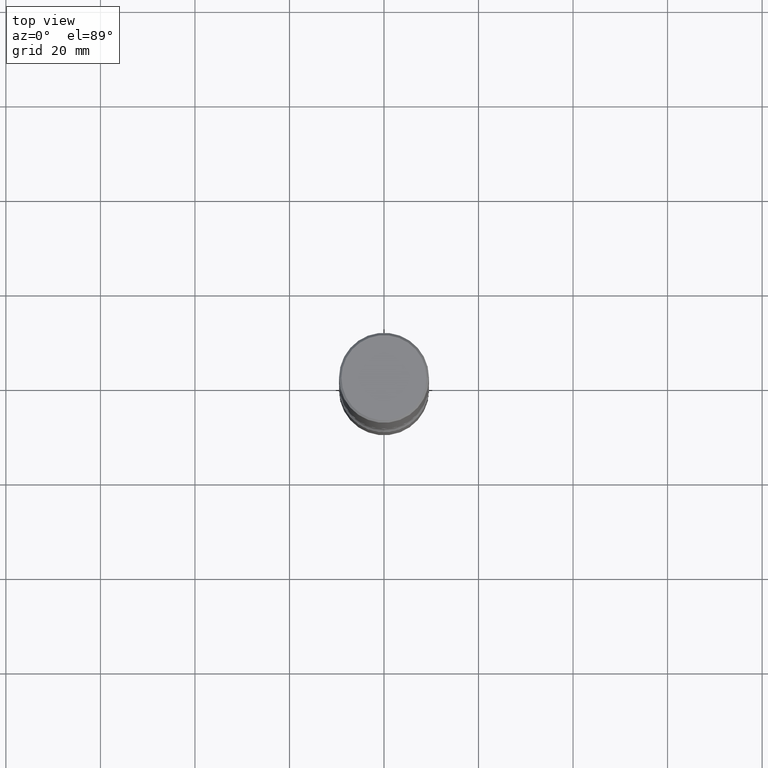
[diagram: clean part render]
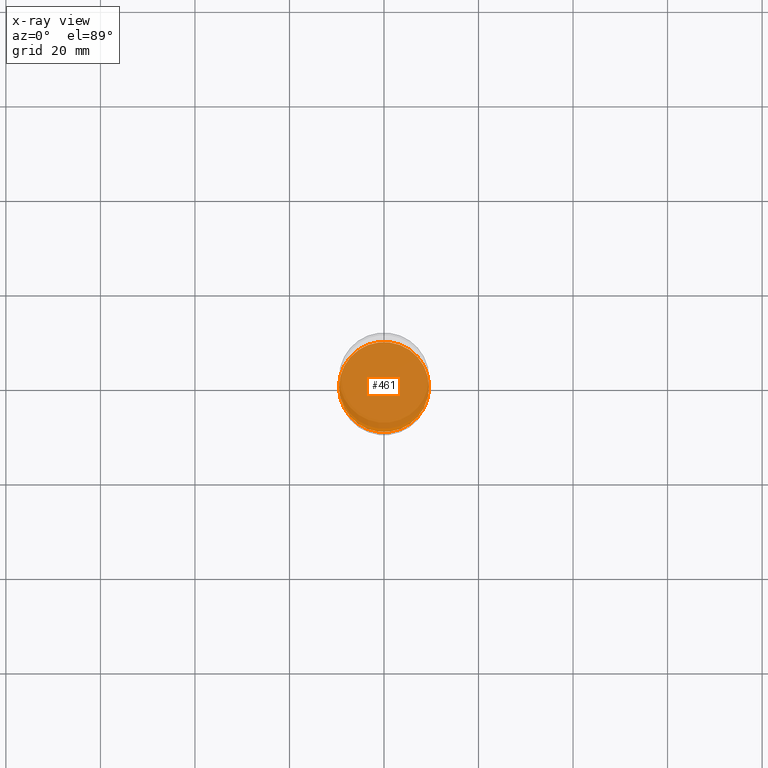
[diagram: x-ray — body ghosted, one internal face saturated and labeled with its STEP entity id]
A machine part, top view, then the same camera in x-ray: the body is ghosted and one INTERNAL B-rep face — a face not visible from any outside direction — is saturated and labeled: STEP entity #461.
In plain terms, the highlighted planar face has unit normal (0, -0, -1).
Its self-contained STEP definition (entity closure, byte-faithful):
#19 = VERTEX_POINT ( 'NONE', #275 ) ;
#21 = CARTESIAN_POINT ( 'NONE',  ( -0.3750000000000003886, -1.564828436313191776E-14, -4.499999999999999112 ) ) ;
#54 = CIRCLE ( 'NONE', #479, 0.3750000000000003886 ) ;
#59 = DIRECTION ( 'NONE',  ( -2.445468806185136597E-29, 3.491481338843145583E-15, 1.000000000000000000 ) ) ;
#139 = CARTESIAN_POINT ( 'NONE',  ( 1.100460962783311244E-28, -1.571166602479415374E-14, -4.499999999999999112 ) ) ;
#140 = DIRECTION ( 'NONE',  ( -1.000000000000000000, 6.982962677686265922E-15, -4.876176775795935793E-29 ) ) ;
#144 = CIRCLE ( 'NONE', #342, 0.3750000000000003886 ) ;
#163 = DIRECTION ( 'NONE',  ( 1.000000000000000000, -6.982962677686265922E-15, 0.000000000000000000 ) ) ;
#224 = EDGE_CURVE ( 'NONE', #310, #19, #144, .T. ) ;
#240 = ORIENTED_EDGE ( 'NONE', *, *, #441, .T. ) ;
#267 = DIRECTION ( 'NONE',  ( 1.000000000000000000, -6.982962677686265922E-15, 0.000000000000000000 ) ) ;
#275 = CARTESIAN_POINT ( 'NONE',  ( 0.3750000000000003886, -1.833027702892650691E-14, -4.499999999999999112 ) ) ;
#310 = VERTEX_POINT ( 'NONE', #21 ) ;
#312 = PLANE ( 'NONE',  #435 ) ;
#342 = AXIS2_PLACEMENT_3D ( 'NONE', #402, #59, #163 ) ;
#351 = DIRECTION ( 'NONE',  ( 2.438088387897960049E-29, -3.491481338843145188E-15, -1.000000000000000000 ) ) ;
#402 = CARTESIAN_POINT ( 'NONE',  ( 1.100460962783311244E-28, -1.571166602479415374E-14, -4.499999999999999112 ) ) ;
#429 = DIRECTION ( 'NONE',  ( -2.445468806185136597E-29, 3.491481338843145583E-15, 1.000000000000000000 ) ) ;
#435 = AXIS2_PLACEMENT_3D ( 'NONE', #139, #351, #140 ) ;
#441 = EDGE_CURVE ( 'NONE', #19, #310, #54, .T. ) ;
#455 = ORIENTED_EDGE ( 'NONE', *, *, #224, .T. ) ;
#461 = ADVANCED_FACE ( 'NONE', ( #560 ), #312, .F. ) ;
#466 = EDGE_LOOP ( 'NONE', ( #240, #455 ) ) ;
#479 = AXIS2_PLACEMENT_3D ( 'NONE', #506, #429, #267 ) ;
#506 = CARTESIAN_POINT ( 'NONE',  ( 1.100460962783311244E-28, -1.571166602479415374E-14, -4.499999999999999112 ) ) ;
#560 = FACE_OUTER_BOUND ( 'NONE', #466, .T. ) ;